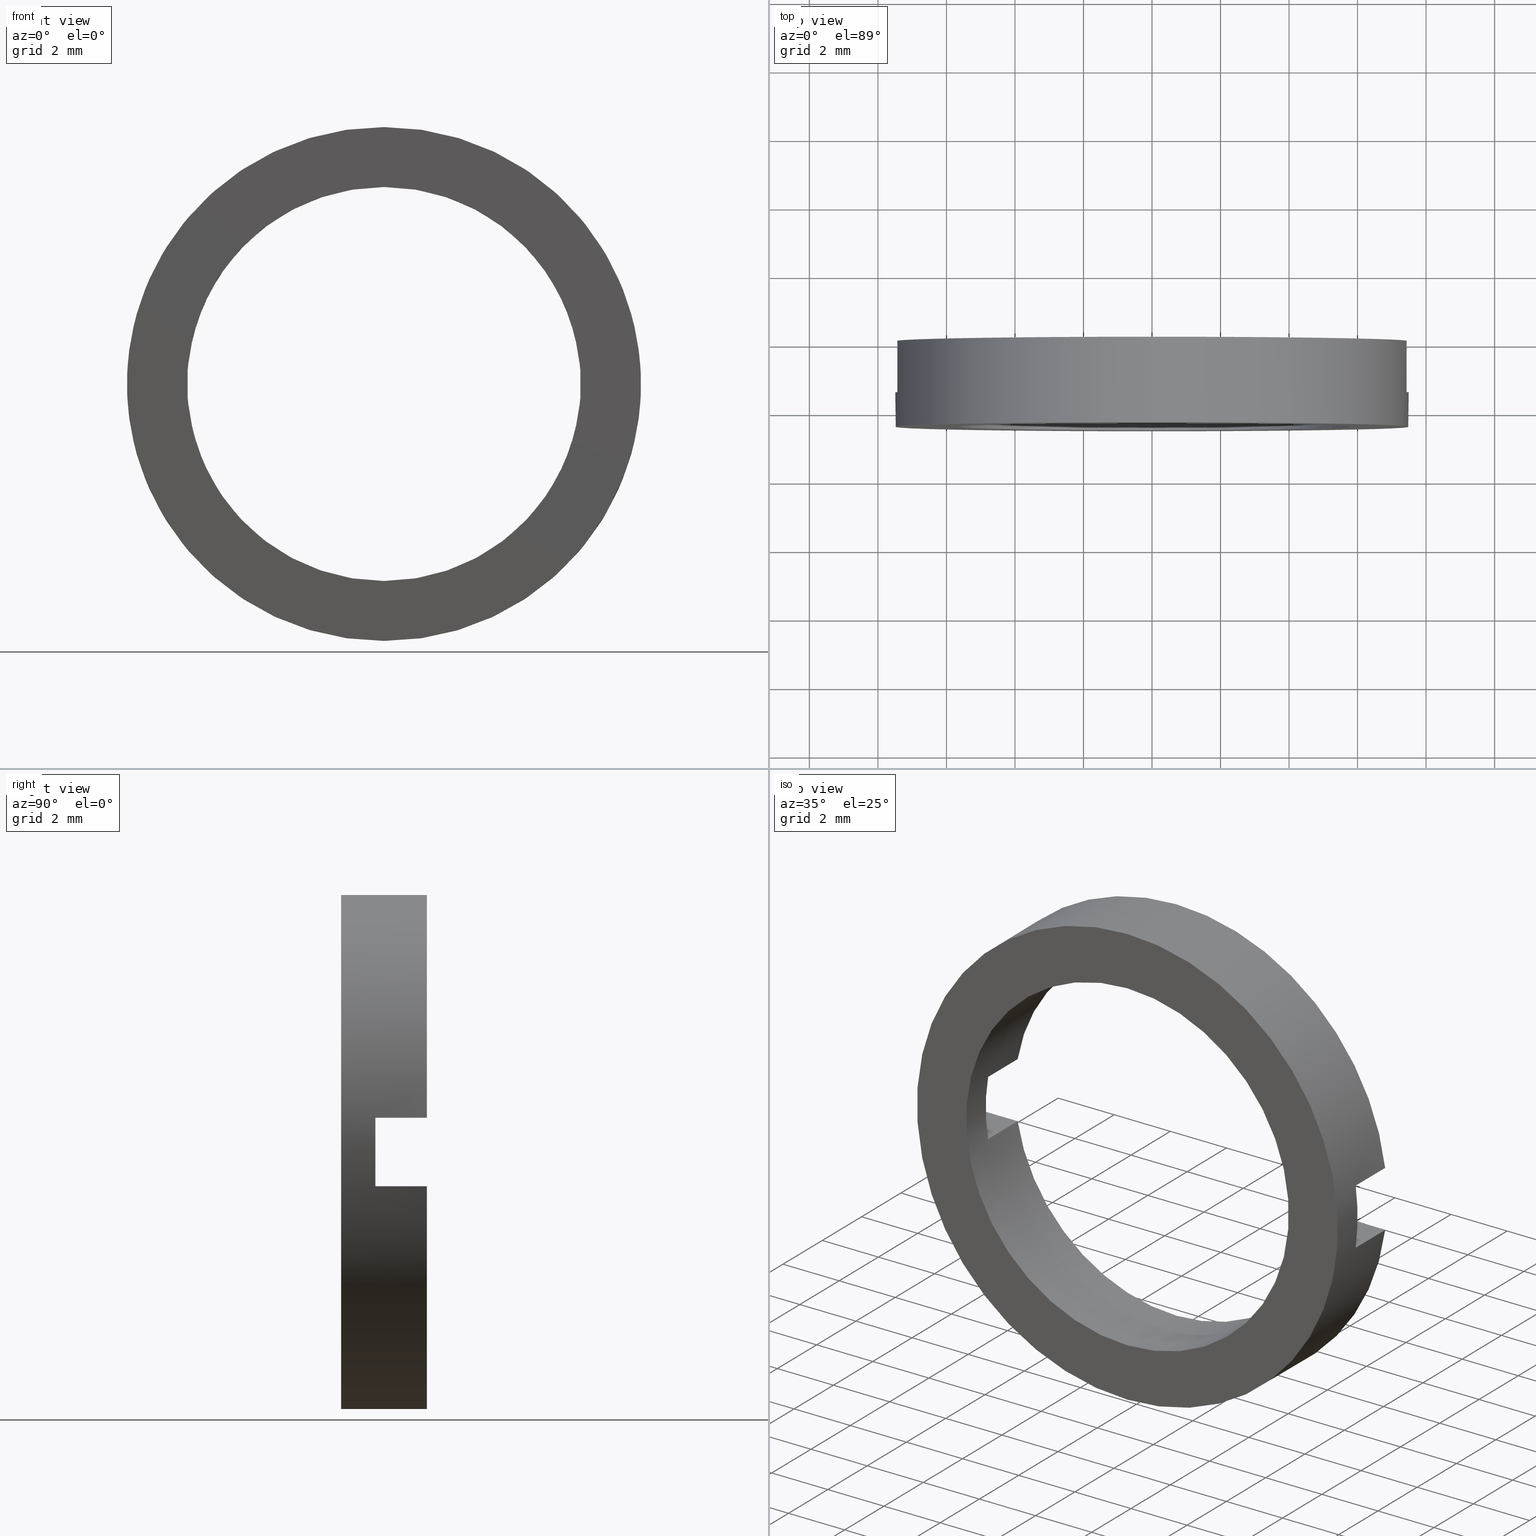
[diagram: canonical four-view strip — front | top / right | iso, engineering-drawing reading convention]
A machine part, canonical four-view strip (front | top / right | iso — engineering-drawing reading convention). The complete STEP part file that produces these views, byte-faithful:
ISO-10303-21;
HEADER;
FILE_DESCRIPTION (( 'STEP AP203' ),
    '1' );
FILE_NAME ('514014.STEP',
    '2019-09-25T08:49:46',
    ( '' ),
    ( '' ),
    'SwSTEP 2.0',
    'SolidWorks 2016',
    '' );
FILE_SCHEMA (( 'CONFIG_CONTROL_DESIGN' ));
ENDSEC;

DATA;
#1 = PERSON_AND_ORGANIZATION ( #571, #198 ) ;
#2 = VECTOR ( 'NONE', #539, 1000.000000000000000 ) ;
#3 = DIRECTION ( 'NONE',  ( -1.000000000000000000, -0.0000000000000000000, -0.0000000000000000000 ) ) ;
#4 = ORIENTED_EDGE ( 'NONE', *, *, #121, .F. ) ;
#5 = CARTESIAN_POINT ( 'NONE',  ( -5.662375826453069500, -1.964249787179434000, -0.9999999999999995600 ) ) ;
#6 = PERSON_AND_ORGANIZATION_ROLE ( 'creator' ) ;
#7 = CC_DESIGN_PERSON_AND_ORGANIZATION_ASSIGNMENT ( #166, #95, ( #570 ) ) ;
#8 = CC_DESIGN_PERSON_AND_ORGANIZATION_ASSIGNMENT ( #250, #553, ( #544 ) ) ;
#9 = APPROVAL_ROLE ( '' ) ;
#10 = CARTESIAN_POINT ( 'NONE',  ( 0.0000000000000000000, 0.0000000000000000000, 0.0000000000000000000 ) ) ;
#11 = APPLICATION_PROTOCOL_DEFINITION ( 'international standard', 'config_control_design', 1994, #148 ) ;
#12 = AXIS2_PLACEMENT_3D ( 'NONE', #80, #83, #586 ) ;
#13 = VECTOR ( 'NONE', #470, 1000.000000000000000 ) ;
#14 = ORIENTED_EDGE ( 'NONE', *, *, #70, .F. ) ;
#15 = CARTESIAN_POINT ( 'NONE',  ( 0.0000000000000000000, -1.964249787179434000, 0.0000000000000000000 ) ) ;
#16 = APPROVAL_ROLE ( '' ) ;
#17 = EDGE_CURVE ( 'NONE', #105, #84, #295, .T. ) ;
#18 = APPROVAL_DATE_TIME ( #63, #577 ) ;
#19 = CIRCLE ( 'NONE', #69, 5.750000000000008900 ) ;
#20 = FACE_OUTER_BOUND ( 'NONE', #497, .T. ) ;
#21 = ORIENTED_EDGE ( 'NONE', *, *, #106, .F. ) ;
#22 = EDGE_CURVE ( 'NONE', #574, #531, #246, .T. ) ;
#23 = PRODUCT_DEFINITION ( 'δ֪', '', #293, #492 ) ;
#24 = VECTOR ( 'NONE', #223, 1000.000000000000000 ) ;
#25 = EDGE_LOOP ( 'NONE', ( #393, #334, #380, #177 ) ) ;
#26 = ORIENTED_EDGE ( 'NONE', *, *, #396, .F. ) ;
#27 = SHAPE_DEFINITION_REPRESENTATION ( #394, #45 ) ;
#28 = CIRCLE ( 'NONE', #562, 7.500000000000007100 ) ;
#29 = ORIENTED_EDGE ( 'NONE', *, *, #122, .F. ) ;
#30 = DIRECTION ( 'NONE',  ( 0.0000000000000000000, -1.000000000000000000, 0.0000000000000000000 ) ) ;
#31 = CARTESIAN_POINT ( 'NONE',  ( 0.0000000000000000000, 56.26084262701361600, 5.750000000000008000 ) ) ;
#32 = PERSON_AND_ORGANIZATION ( #571, #198 ) ;
#33 = DIRECTION ( 'NONE',  ( 0.0000000000000000000, 0.0000000000000000000, 1.000000000000000000 ) ) ;
#34 = ORIENTED_EDGE ( 'NONE', *, *, #438, .F. ) ;
#35 = DIRECTION ( 'NONE',  ( -0.0000000000000000000, 1.000000000000000000, -0.0000000000000000000 ) ) ;
#36 = PLANE ( 'NONE',  #143 ) ;
#37 = AXIS2_PLACEMENT_3D ( 'NONE', #351, #90, #500 ) ;
#38 = CARTESIAN_POINT ( 'NONE',  ( 0.0000000000000000000, -4.464249787179428900, 7.500000000000007100 ) ) ;
#39 = PLANE ( 'NONE',  #12 ) ;
#40 = COORDINATED_UNIVERSAL_TIME_OFFSET ( 8, 0, .AHEAD. ) ;
#41 = FACE_OUTER_BOUND ( 'NONE', #363, .T. ) ;
#42 = ORIENTED_EDGE ( 'NONE', *, *, #134, .T. ) ;
#43 = ORIENTED_EDGE ( 'NONE', *, *, #77, .T. ) ;
#44 = CARTESIAN_POINT ( 'NONE',  ( 5.750000000000008900, -4.464249787179429800, 0.0000000000000000000 ) ) ;
#45 = ADVANCED_BREP_SHAPE_REPRESENTATION ( '514014', ( #128, #572 ), #132 ) ;
#46 = EDGE_CURVE ( 'NONE', #129, #226, #284, .T. ) ;
#47 = DATE_AND_TIME ( #189, #306 ) ;
#48 = DIRECTION ( 'NONE',  ( -0.0000000000000000000, 1.000000000000000000, -0.0000000000000000000 ) ) ;
#49 = APPROVAL_STATUS ( 'not_yet_approved' ) ;
#50 = AXIS2_PLACEMENT_3D ( 'NONE', #506, #222, #412 ) ;
#51 = VERTEX_POINT ( 'NONE', #55 ) ;
#52 = DIRECTION ( 'NONE',  ( 0.0000000000000000000, 0.0000000000000000000, 1.000000000000000000 ) ) ;
#53 = DIRECTION ( 'NONE',  ( -0.0000000000000000000, 1.000000000000000000, -0.0000000000000000000 ) ) ;
#54 = APPLICATION_CONTEXT ( 'configuration controlled 3d designs of mechanical parts and assemblies' ) ;
#55 = CARTESIAN_POINT ( 'NONE',  ( 7.433034373659247700, -1.964249787179430900, -1.000000000000000000 ) ) ;
#56 = MECHANICAL_CONTEXT ( 'NONE', #99, 'mechanical' ) ;
#57 = LOCAL_TIME ( 16, 49, 46.00000000000000000, #430 ) ;
#58 = CARTESIAN_POINT ( 'NONE',  ( -7.433034373659258300, -3.464249787179428400, 0.9999999999999995600 ) ) ;
#59 = VERTEX_POINT ( 'NONE', #5 ) ;
#60 = ORIENTED_EDGE ( 'NONE', *, *, #532, .F. ) ;
#61 = CARTESIAN_POINT ( 'NONE',  ( 0.0000000000000000000, -1.964249787179434000, 0.0000000000000000000 ) ) ;
#62 = AXIS2_PLACEMENT_3D ( 'NONE', #61, #330, #375 ) ;
#63 = DATE_AND_TIME ( #100, #549 ) ;
#64 = DIRECTION ( 'NONE',  ( 0.0000000000000000000, 1.000000000000000000, 0.0000000000000000000 ) ) ;
#65 = CIRCLE ( 'NONE', #321, 7.500000000000007100 ) ;
#66 = CC_DESIGN_DATE_AND_TIME_ASSIGNMENT ( #578, #234, ( #570 ) ) ;
#67 = LINE ( 'NONE', #464, #537 ) ;
#68 = COORDINATED_UNIVERSAL_TIME_OFFSET ( 8, 0, .AHEAD. ) ;
#69 = AXIS2_PLACEMENT_3D ( 'NONE', #82, #588, #175 ) ;
#70 = EDGE_CURVE ( 'NONE', #531, #59, #505, .T. ) ;
#71 = VERTEX_POINT ( 'NONE', #194 ) ;
#72 = ORIENTED_EDGE ( 'NONE', *, *, #46, .F. ) ;
#73 = CARTESIAN_POINT ( 'NONE',  ( 0.0000000000000000000, 56.26084262701361600, 0.0000000000000000000 ) ) ;
#74 = APPROVAL_DATE_TIME ( #557, #255 ) ;
#75 = LINE ( 'NONE', #264, #270 ) ;
#76 = PLANE ( 'NONE',  #227 ) ;
#77 = EDGE_CURVE ( 'NONE', #96, #192, #28, .T. ) ;
#78 = ORIENTED_EDGE ( 'NONE', *, *, #276, .F. ) ;
#79 = CARTESIAN_POINT ( 'NONE',  ( -7.433034373659259200, 56.26084262701361600, 1.000000000000000000 ) ) ;
#80 = CARTESIAN_POINT ( 'NONE',  ( 0.0000000000000000000, -3.464249787179431100, 0.0000000000000000000 ) ) ;
#81 = CALENDAR_DATE ( 2019, 25, 9 ) ;
#82 = CARTESIAN_POINT ( 'NONE',  ( 0.0000000000000000000, -4.464249787179428900, 0.0000000000000000000 ) ) ;
#83 = DIRECTION ( 'NONE',  ( 0.0000000000000000000, 1.000000000000000000, 0.0000000000000000000 ) ) ;
#84 = VERTEX_POINT ( 'NONE', #327 ) ;
#85 = CARTESIAN_POINT ( 'NONE',  ( 9.184850993605157800E-016, -1.964249787179434000, -7.500000000000007100 ) ) ;
#86 = ORIENTED_EDGE ( 'NONE', *, *, #515, .T. ) ;
#87 = DIRECTION ( 'NONE',  ( -0.0000000000000000000, 1.000000000000000000, -0.0000000000000000000 ) ) ;
#88 = AXIS2_PLACEMENT_3D ( 'NONE', #152, #427, #322 ) ;
#89 = EDGE_CURVE ( 'NONE', #59, #163, #466, .T. ) ;
#90 = DIRECTION ( 'NONE',  ( -0.0000000000000000000, -1.000000000000000000, -0.0000000000000000000 ) ) ;
#91 = LOCAL_TIME ( 16, 49, 46.00000000000000000, #340 ) ;
#92 = LOCAL_TIME ( 16, 49, 46.00000000000000000, #416 ) ;
#93 = VECTOR ( 'NONE', #160, 1000.000000000000000 ) ;
#94 = CARTESIAN_POINT ( 'NONE',  ( -26.85254027261461800, -3.464249787179431100, 1.000000000000000000 ) ) ;
#95 = PERSON_AND_ORGANIZATION_ROLE ( 'classification_officer' ) ;
#96 = VERTEX_POINT ( 'NONE', #239 ) ;
#97 = CC_DESIGN_PERSON_AND_ORGANIZATION_ASSIGNMENT ( #341, #461, ( #116 ) ) ;
#98 = DIRECTION ( 'NONE',  ( 1.000000000000000000, 0.0000000000000000000, 0.0000000000000000000 ) ) ;
#99 = APPLICATION_CONTEXT ( 'configuration controlled 3d designs of mechanical parts and assemblies' ) ;
#100 = CALENDAR_DATE ( 2019, 25, 9 ) ;
#101 = PLANE ( 'NONE',  #179 ) ;
#102 =( NAMED_UNIT ( * ) PLANE_ANGLE_UNIT ( ) SI_UNIT ( $, .RADIAN. ) );
#103 = ORIENTED_EDGE ( 'NONE', *, *, #114, .T. ) ;
#104 = CARTESIAN_POINT ( 'NONE',  ( 7.433034373659259200, 56.26084262701361600, 1.000000000000000000 ) ) ;
#105 = VERTEX_POINT ( 'NONE', #58 ) ;
#106 = EDGE_CURVE ( 'NONE', #84, #210, #379, .T. ) ;
#107 = CARTESIAN_POINT ( 'NONE',  ( -26.85254027261461800, -1.964249787179430900, -1.000000000000000000 ) ) ;
#108 = LOCAL_TIME ( 16, 49, 46.00000000000000000, #40 ) ;
#109 = PERSON_AND_ORGANIZATION ( #571, #198 ) ;
#110 = CARTESIAN_POINT ( 'NONE',  ( 0.0000000000000000000, 56.26084262701361600, 0.0000000000000000000 ) ) ;
#111 = CIRCLE ( 'NONE', #469, 5.750000000000008900 ) ;
#112 = ORIENTED_EDGE ( 'NONE', *, *, #70, .T. ) ;
#113 = DIRECTION ( 'NONE',  ( 0.0000000000000000000, 0.0000000000000000000, 1.000000000000000000 ) ) ;
#114 = EDGE_CURVE ( 'NONE', #226, #444, #530, .T. ) ;
#115 = CC_DESIGN_PERSON_AND_ORGANIZATION_ASSIGNMENT ( #32, #417, ( #23 ) ) ;
#116 = PRODUCT ( '514014', '514014', '', ( #56 ) ) ;
#117 = FACE_OUTER_BOUND ( 'NONE', #214, .T. ) ;
#118 = ORIENTED_EDGE ( 'NONE', *, *, #347, .T. ) ;
#119 = COORDINATED_UNIVERSAL_TIME_OFFSET ( 8, 0, .AHEAD. ) ;
#120 = FACE_OUTER_BOUND ( 'NONE', #522, .T. ) ;
#121 = EDGE_CURVE ( 'NONE', #272, #129, #281, .T. ) ;
#122 = EDGE_CURVE ( 'NONE', #226, #71, #67, .T. ) ;
#123 = LINE ( 'NONE', #79, #2 ) ;
#124 = ORIENTED_EDGE ( 'NONE', *, *, #339, .T. ) ;
#125 = CARTESIAN_POINT ( 'NONE',  ( 7.433034373659258300, -3.464249787179428400, -0.9999999999999995600 ) ) ;
#126 = DIRECTION ( 'NONE',  ( 0.0000000000000000000, -0.0000000000000000000, -1.000000000000000000 ) ) ;
#127 = LINE ( 'NONE', #589, #440 ) ;
#128 = MANIFOLD_SOLID_BREP ( '�г�-����1', #352 ) ;
#129 = VERTEX_POINT ( 'NONE', #381 ) ;
#130 = DIRECTION ( 'NONE',  ( 0.0000000000000000000, 0.0000000000000000000, 1.000000000000000000 ) ) ;
#131 = ORIENTED_EDGE ( 'NONE', *, *, #387, .F. ) ;
#132 =( GEOMETRIC_REPRESENTATION_CONTEXT ( 3 ) GLOBAL_UNCERTAINTY_ASSIGNED_CONTEXT ( ( #279 ) ) GLOBAL_UNIT_ASSIGNED_CONTEXT ( ( #142, #102, #319 ) ) REPRESENTATION_CONTEXT ( 'NONE', 'WORKASPACE' ) );
#133 = CARTESIAN_POINT ( 'NONE',  ( 0.0000000000000000000, -1.964249787179434000, 0.0000000000000000000 ) ) ;
#134 = EDGE_CURVE ( 'NONE', #51, #325, #263, .T. ) ;
#135 = DATE_AND_TIME ( #526, #564 ) ;
#136 = LINE ( 'NONE', #31, #391 ) ;
#137 = PRODUCT_RELATED_PRODUCT_CATEGORY ( 'detail', '', ( #116 ) ) ;
#138 = FACE_OUTER_BOUND ( 'NONE', #479, .T. ) ;
#139 = VERTEX_POINT ( 'NONE', #567 ) ;
#140 = APPROVAL ( #49, 'δָ��' ) ;
#141 = PERSON_AND_ORGANIZATION_ROLE ( 'design_supplier' ) ;
#142 =( LENGTH_UNIT ( ) NAMED_UNIT ( * ) SI_UNIT ( .MILLI., .METRE. ) );
#143 = AXIS2_PLACEMENT_3D ( 'NONE', #44, #403, #358 ) ;
#144 = FACE_OUTER_BOUND ( 'NONE', #482, .T. ) ;
#145 = PERSON_AND_ORGANIZATION_ROLE ( 'design_supplier' ) ;
#146 = ORIENTED_EDGE ( 'NONE', *, *, #154, .T. ) ;
#147 = EDGE_LOOP ( 'NONE', ( #560, #233, #124, #576, #170, #191, #267, #585 ) ) ;
#148 = APPLICATION_CONTEXT ( 'configuration controlled 3d designs of mechanical parts and assemblies' ) ;
#149 = CALENDAR_DATE ( 2019, 25, 9 ) ;
#150 = CIRCLE ( 'NONE', #50, 7.500000000000007100 ) ;
#151 = ORIENTED_EDGE ( 'NONE', *, *, #221, .F. ) ;
#152 = CARTESIAN_POINT ( 'NONE',  ( 0.0000000000000000000, -3.464249787179428400, 0.0000000000000000000 ) ) ;
#153 = VERTEX_POINT ( 'NONE', #197 ) ;
#154 = EDGE_CURVE ( 'NONE', #409, #444, #336, .T. ) ;
#155 = ADVANCED_FACE ( 'NONE', ( #117 ), #301, .T. ) ;
#156 = CALENDAR_DATE ( 2019, 25, 9 ) ;
#157 = CC_DESIGN_PERSON_AND_ORGANIZATION_ASSIGNMENT ( #238, #282, ( #293 ) ) ;
#158 = ORIENTED_EDGE ( 'NONE', *, *, #525, .T. ) ;
#159 = CC_DESIGN_PERSON_AND_ORGANIZATION_ASSIGNMENT ( #207, #230, ( #432 ) ) ;
#160 = DIRECTION ( 'NONE',  ( -1.000000000000000000, -0.0000000000000000000, -0.0000000000000000000 ) ) ;
#161 = AXIS2_PLACEMENT_3D ( 'NONE', #533, #30, #488 ) ;
#162 = DATE_AND_TIME ( #81, #91 ) ;
#163 = VERTEX_POINT ( 'NONE', #524 ) ;
#164 = ORIENTED_EDGE ( 'NONE', *, *, #205, .F. ) ;
#165 = PLANE ( 'NONE',  #161 ) ;
#166 = PERSON_AND_ORGANIZATION ( #571, #198 ) ;
#167 = VECTOR ( 'NONE', #410, 1000.000000000000000 ) ;
#168 = DIRECTION ( 'NONE',  ( -0.0000000000000000000, 1.000000000000000000, -0.0000000000000000000 ) ) ;
#169 = AXIS2_PLACEMENT_3D ( 'NONE', #110, #190, #513 ) ;
#170 = ORIENTED_EDGE ( 'NONE', *, *, #122, .T. ) ;
#171 = CARTESIAN_POINT ( 'NONE',  ( 5.662375826453070400, 56.26084262701361600, -1.000000000000000000 ) ) ;
#172 = DIRECTION ( 'NONE',  ( -1.000000000000000000, 0.0000000000000000000, -0.0000000000000000000 ) ) ;
#173 = DIRECTION ( 'NONE',  ( 0.0000000000000000000, 0.0000000000000000000, 1.000000000000000000 ) ) ;
#174 = APPROVAL_PERSON_ORGANIZATION ( #398, #356, #367 ) ;
#175 = DIRECTION ( 'NONE',  ( 0.0000000000000000000, 0.0000000000000000000, 1.000000000000000000 ) ) ;
#176 = ORIENTED_EDGE ( 'NONE', *, *, #275, .F. ) ;
#177 = ORIENTED_EDGE ( 'NONE', *, *, #205, .T. ) ;
#178 = CARTESIAN_POINT ( 'NONE',  ( -5.662375826453070400, 56.26084262701361600, -1.000000000000000000 ) ) ;
#179 = AXIS2_PLACEMENT_3D ( 'NONE', #232, #558, #328 ) ;
#180 = ADVANCED_FACE ( 'NONE', ( #138 ), #101, .F. ) ;
#181 = PERSON_AND_ORGANIZATION ( #571, #198 ) ;
#182 = FACE_OUTER_BOUND ( 'NONE', #252, .T. ) ;
#183 = APPROVAL_ROLE ( '' ) ;
#184 = ORIENTED_EDGE ( 'NONE', *, *, #339, .F. ) ;
#185 = APPLICATION_PROTOCOL_DEFINITION ( 'international standard', 'config_control_design', 1994, #99 ) ;
#186 = DIRECTION ( 'NONE',  ( 1.000000000000000000, 0.0000000000000000000, 0.0000000000000000000 ) ) ;
#187 = DATE_TIME_ROLE ( 'creation_date' ) ;
#188 = APPROVAL ( #559, 'δָ��' ) ;
#189 = CALENDAR_DATE ( 2019, 25, 9 ) ;
#190 = DIRECTION ( 'NONE',  ( -0.0000000000000000000, 1.000000000000000000, -0.0000000000000000000 ) ) ;
#191 = ORIENTED_EDGE ( 'NONE', *, *, #445, .F. ) ;
#192 = VERTEX_POINT ( 'NONE', #516 ) ;
#193 = DIRECTION ( 'NONE',  ( 0.0000000000000000000, 0.0000000000000000000, 1.000000000000000000 ) ) ;
#194 = CARTESIAN_POINT ( 'NONE',  ( 5.662375826453069500, -3.464249787179428400, 0.9999999999999995600 ) ) ;
#195 = CC_DESIGN_DATE_AND_TIME_ASSIGNMENT ( #439, #187, ( #244 ) ) ;
#196 = PERSON_AND_ORGANIZATION ( #571, #198 ) ;
#197 = CARTESIAN_POINT ( 'NONE',  ( 9.184850993605157800E-016, -4.464249787179428900, -7.500000000000007100 ) ) ;
#198 = ORGANIZATION ( 'δָ��', 'δָ��', '' ) ;
#199 = VERTEX_POINT ( 'NONE', #468 ) ;
#200 = EDGE_CURVE ( 'NONE', #409, #325, #208, .T. ) ;
#201 = LOCAL_TIME ( 16, 49, 46.00000000000000000, #359 ) ;
#202 = VECTOR ( 'NONE', #53, 1000.000000000000000 ) ;
#203 = ORIENTED_EDGE ( 'NONE', *, *, #275, .T. ) ;
#204 = DIRECTION ( 'NONE',  ( -0.0000000000000000000, 1.000000000000000000, -0.0000000000000000000 ) ) ;
#205 = EDGE_CURVE ( 'NONE', #210, #199, #333, .T. ) ;
#206 = APPROVAL_PERSON_ORGANIZATION ( #196, #255, #183 ) ;
#207 = PERSON_AND_ORGANIZATION ( #571, #198 ) ;
#208 = CIRCLE ( 'NONE', #420, 7.500000000000007100 ) ;
#209 = CARTESIAN_POINT ( 'NONE',  ( 0.0000000000000000000, -4.464249787179428900, 5.750000000000008900 ) ) ;
#210 = VERTEX_POINT ( 'NONE', #283 ) ;
#211 = DIRECTION ( 'NONE',  ( -0.0000000000000000000, 1.000000000000000000, -0.0000000000000000000 ) ) ;
#212 = DIRECTION ( 'NONE',  ( -0.0000000000000000000, 1.000000000000000000, -0.0000000000000000000 ) ) ;
#213 = CARTESIAN_POINT ( 'NONE',  ( 7.041719095097290700E-016, -1.964249787179434000, -5.750000000000007100 ) ) ;
#214 = EDGE_LOOP ( 'NONE', ( #158, #217, #490, #42, #370, #146, #176, #528 ) ) ;
#215 = DATE_AND_TIME ( #149, #278 ) ;
#216 = DIRECTION ( 'NONE',  ( 0.0000000000000000000, 0.0000000000000000000, 1.000000000000000000 ) ) ;
#217 = ORIENTED_EDGE ( 'NONE', *, *, #429, .T. ) ;
#218 = ORIENTED_EDGE ( 'NONE', *, *, #396, .T. ) ;
#219 = DIRECTION ( 'NONE',  ( -0.0000000000000000000, 1.000000000000000000, -0.0000000000000000000 ) ) ;
#220 = DIRECTION ( 'NONE',  ( 1.000000000000000000, 0.0000000000000000000, 0.0000000000000000000 ) ) ;
#221 = EDGE_CURVE ( 'NONE', #51, #139, #568, .T. ) ;
#222 = DIRECTION ( 'NONE',  ( -0.0000000000000000000, 1.000000000000000000, -0.0000000000000000000 ) ) ;
#223 = DIRECTION ( 'NONE',  ( 0.0000000000000000000, -1.000000000000000000, 0.0000000000000000000 ) ) ;
#224 = CALENDAR_DATE ( 2019, 25, 9 ) ;
#225 = VECTOR ( 'NONE', #307, 1000.000000000000000 ) ;
#226 = VERTEX_POINT ( 'NONE', #411 ) ;
#227 = AXIS2_PLACEMENT_3D ( 'NONE', #257, #583, #126 ) ;
#228 = AXIS2_PLACEMENT_3D ( 'NONE', #456, #457, #548 ) ;
#229 = FACE_OUTER_BOUND ( 'NONE', #25, .T. ) ;
#230 = PERSON_AND_ORGANIZATION_ROLE ( 'design_owner' ) ;
#231 = ORIENTED_EDGE ( 'NONE', *, *, #89, .T. ) ;
#232 = CARTESIAN_POINT ( 'NONE',  ( -26.85254027261461800, -3.464249787179431100, -1.000000000000000000 ) ) ;
#233 = ORIENTED_EDGE ( 'NONE', *, *, #364, .F. ) ;
#234 = DATE_TIME_ROLE ( 'classification_date' ) ;
#235 = DIRECTION ( 'NONE',  ( 0.0000000000000000000, 0.0000000000000000000, 1.000000000000000000 ) ) ;
#236 = ADVANCED_FACE ( 'NONE', ( #459 ), #76, .F. ) ;
#237 = DIRECTION ( 'NONE',  ( -0.0000000000000000000, 1.000000000000000000, -0.0000000000000000000 ) ) ;
#238 = PERSON_AND_ORGANIZATION ( #571, #198 ) ;
#239 = CARTESIAN_POINT ( 'NONE',  ( -7.433034373659268100, -1.964249787179430900, 1.000000000000000000 ) ) ;
#240 = ADVANCED_FACE ( 'NONE', ( #20 ), #485, .F. ) ;
#241 = CIRCLE ( 'NONE', #298, 5.750000000000007100 ) ;
#242 = EDGE_CURVE ( 'NONE', #51, #386, #360, .T. ) ;
#243 = ORIENTED_EDGE ( 'NONE', *, *, #154, .F. ) ;
#244 = PRODUCT_DEFINITION ( 'δ֪', '', #475, #256 ) ;
#245 = LINE ( 'NONE', #171, #251 ) ;
#246 = LINE ( 'NONE', #318, #545 ) ;
#247 = ORIENTED_EDGE ( 'NONE', *, *, #22, .T. ) ;
#248 = EDGE_CURVE ( 'NONE', #96, #105, #123, .T. ) ;
#249 = EDGE_CURVE ( 'NONE', #139, #531, #241, .T. ) ;
#250 = PERSON_AND_ORGANIZATION ( #571, #198 ) ;
#251 = VECTOR ( 'NONE', #446, 1000.000000000000000 ) ;
#252 = EDGE_LOOP ( 'NONE', ( #392, #218, #437, #14, #521, #151 ) ) ;
#253 = EDGE_LOOP ( 'NONE', ( #310, #317, #554, #561 ) ) ;
#254 = CARTESIAN_POINT ( 'NONE',  ( 0.0000000000000000000, -3.464249787179428400, 0.0000000000000000000 ) ) ;
#255 = APPROVAL ( #419, 'δָ��' ) ;
#256 = DESIGN_CONTEXT ( 'detailed design', #54, 'design' ) ;
#257 = CARTESIAN_POINT ( 'NONE',  ( 5.750000000000007100, -1.964249787179430900, 0.0000000000000000000 ) ) ;
#258 = CARTESIAN_POINT ( 'NONE',  ( -26.85254027261461800, -3.464249787179431100, -1.000000000000000000 ) ) ;
#259 = AXIS2_PLACEMENT_3D ( 'NONE', #495, #168, #486 ) ;
#260 = CYLINDRICAL_SURFACE ( 'NONE', #450, 5.750000000000008000 ) ;
#261 = CC_DESIGN_DATE_AND_TIME_ASSIGNMENT ( #314, #365, ( #23 ) ) ;
#262 = PLANE ( 'NONE',  #480 ) ;
#263 = LINE ( 'NONE', #520, #418 ) ;
#264 = CARTESIAN_POINT ( 'NONE',  ( -26.85254027261461800, -1.964249787179430900, 1.000000000000000000 ) ) ;
#265 = DIRECTION ( 'NONE',  ( 0.0000000000000000000, 0.0000000000000000000, 1.000000000000000000 ) ) ;
#266 = PLANE ( 'NONE',  #348 ) ;
#267 = ORIENTED_EDGE ( 'NONE', *, *, #489, .T. ) ;
#268 = PLANE ( 'NONE',  #408 ) ;
#269 = CALENDAR_DATE ( 2019, 25, 9 ) ;
#270 = VECTOR ( 'NONE', #313, 1000.000000000000000 ) ;
#271 = DIRECTION ( 'NONE',  ( -0.0000000000000000000, 1.000000000000000000, -0.0000000000000000000 ) ) ;
#272 = VERTEX_POINT ( 'NONE', #402 ) ;
#273 = ORIENTED_EDGE ( 'NONE', *, *, #551, .T. ) ;
#274 = CARTESIAN_POINT ( 'NONE',  ( 7.433034373659247700, -1.964249787179430900, 1.000000000000000000 ) ) ;
#275 = EDGE_CURVE ( 'NONE', #192, #444, #472, .T. ) ;
#276 = EDGE_CURVE ( 'NONE', #574, #291, #111, .T. ) ;
#277 = APPLICATION_PROTOCOL_DEFINITION ( 'international standard', 'config_control_design', 1994, #371 ) ;
#278 = LOCAL_TIME ( 16, 49, 46.00000000000000000, #449 ) ;
#279 = UNCERTAINTY_MEASURE_WITH_UNIT (LENGTH_MEASURE( 1.000000000000000100E-005 ), #142, 'distance_accuracy_value', 'NONE');
#280 = DIRECTION ( 'NONE',  ( 0.0000000000000000000, 0.0000000000000000000, 1.000000000000000000 ) ) ;
#281 = CIRCLE ( 'NONE', #62, 5.750000000000007100 ) ;
#282 = PERSON_AND_ORGANIZATION_ROLE ( 'creator' ) ;
#283 = CARTESIAN_POINT ( 'NONE',  ( -5.662375826453069500, -3.464249787179428400, -0.9999999999999995600 ) ) ;
#284 = CIRCLE ( 'NONE', #376, 5.750000000000007100 ) ;
#285 = ORIENTED_EDGE ( 'NONE', *, *, #421, .F. ) ;
#286 = ADVANCED_FACE ( 'NONE', ( #342 ), #260, .F. ) ;
#287 = CARTESIAN_POINT ( 'NONE',  ( -26.85254027261461800, -1.964249787179430900, 1.000000000000000000 ) ) ;
#288 = CALENDAR_DATE ( 2019, 25, 9 ) ;
#289 = VECTOR ( 'NONE', #87, 1000.000000000000000 ) ;
#290 = AXIS2_PLACEMENT_3D ( 'NONE', #441, #211, #216 ) ;
#291 = VERTEX_POINT ( 'NONE', #209 ) ;
#292 = AXIS2_PLACEMENT_3D ( 'NONE', #133, #361, #130 ) ;
#293 = PRODUCT_DEFINITION_FORMATION_WITH_SPECIFIED_SOURCE ( '�κ�', '', #432, .NOT_KNOWN. ) ;
#294 = ADVANCED_FACE ( 'NONE', ( #41 ), #262, .F. ) ;
#295 = LINE ( 'NONE', #94, #407 ) ;
#296 = VERTEX_POINT ( 'NONE', #38 ) ;
#297 = DIRECTION ( 'NONE',  ( 0.0000000000000000000, 0.0000000000000000000, 1.000000000000000000 ) ) ;
#298 = AXIS2_PLACEMENT_3D ( 'NONE', #447, #204, #33 ) ;
#299 = PERSON_AND_ORGANIZATION ( #571, #198 ) ;
#300 = VECTOR ( 'NONE', #219, 1000.000000000000000 ) ;
#301 = CYLINDRICAL_SURFACE ( 'NONE', #169, 7.500000000000007100 ) ;
#302 = PRODUCT_DEFINITION_SHAPE ( 'NONE', 'NONE',  #23 ) ;
#303 = CC_DESIGN_PERSON_AND_ORGANIZATION_ASSIGNMENT ( #181, #141, ( #293 ) ) ;
#304 = CARTESIAN_POINT ( 'NONE',  ( 0.0000000000000000000, -4.464249787179428900, 0.0000000000000000000 ) ) ;
#305 = CARTESIAN_POINT ( 'NONE',  ( -5.662375826453070400, 56.26084262701361600, 1.000000000000000000 ) ) ;
#306 = LOCAL_TIME ( 16, 49, 46.00000000000000000, #458 ) ;
#307 = DIRECTION ( 'NONE',  ( 1.000000000000000000, 0.0000000000000000000, 0.0000000000000000000 ) ) ;
#308 = ORIENTED_EDGE ( 'NONE', *, *, #551, .F. ) ;
#309 = CARTESIAN_POINT ( 'NONE',  ( 5.662375826453069500, -3.464249787179428400, -0.9999999999999995600 ) ) ;
#310 = ORIENTED_EDGE ( 'NONE', *, *, #421, .T. ) ;
#311 = AXIS2_PLACEMENT_3D ( 'NONE', #400, #212, #538 ) ;
#312 = EDGE_CURVE ( 'NONE', #199, #105, #384, .T. ) ;
#313 = DIRECTION ( 'NONE',  ( 1.000000000000000000, 0.0000000000000000000, 0.0000000000000000000 ) ) ;
#314 = DATE_AND_TIME ( #435, #108 ) ;
#315 = APPROVAL_DATE_TIME ( #566, #188 ) ;
#316 = APPROVAL_STATUS ( 'not_yet_approved' ) ;
#317 = ORIENTED_EDGE ( 'NONE', *, *, #515, .F. ) ;
#318 = CARTESIAN_POINT ( 'NONE',  ( 7.041719095097290700E-016, 56.26084262701361600, -5.750000000000008000 ) ) ;
#319 =( NAMED_UNIT ( * ) SI_UNIT ( $, .STERADIAN. ) SOLID_ANGLE_UNIT ( ) );
#320 = APPROVAL_ROLE ( '' ) ;
#321 = AXIS2_PLACEMENT_3D ( 'NONE', #453, #503, #173 ) ;
#322 = DIRECTION ( 'NONE',  ( 0.0000000000000000000, 0.0000000000000000000, 1.000000000000000000 ) ) ;
#323 = DATE_TIME_ROLE ( 'classification_date' ) ;
#324 = APPROVAL_PERSON_ORGANIZATION ( #1, #547, #16 ) ;
#325 = VERTEX_POINT ( 'NONE', #125 ) ;
#326 = EDGE_LOOP ( 'NONE', ( #354, #569 ) ) ;
#327 = CARTESIAN_POINT ( 'NONE',  ( -5.662375826453069500, -3.464249787179428400, 0.9999999999999995600 ) ) ;
#328 = DIRECTION ( 'NONE',  ( -1.000000000000000000, 0.0000000000000000000, -0.0000000000000000000 ) ) ;
#329 = PERSON_AND_ORGANIZATION ( #571, #198 ) ;
#330 = DIRECTION ( 'NONE',  ( -0.0000000000000000000, 1.000000000000000000, -0.0000000000000000000 ) ) ;
#331 = LINE ( 'NONE', #258, #431 ) ;
#332 = ADVANCED_FACE ( 'NONE', ( #182 ), #165, .F. ) ;
#333 = LINE ( 'NONE', #369, #93 ) ;
#334 = ORIENTED_EDGE ( 'NONE', *, *, #17, .T. ) ;
#335 = CARTESIAN_POINT ( 'NONE',  ( 0.0000000000000000000, -3.464249787179428400, 0.0000000000000000000 ) ) ;
#336 = LINE ( 'NONE', #104, #202 ) ;
#337 = ORIENTED_EDGE ( 'NONE', *, *, #525, .F. ) ;
#338 = AXIS2_PLACEMENT_3D ( 'NONE', #502, #451, #172 ) ;
#339 = EDGE_CURVE ( 'NONE', #291, #129, #136, .T. ) ;
#340 = COORDINATED_UNIVERSAL_TIME_OFFSET ( 8, 0, .AHEAD. ) ;
#341 = PERSON_AND_ORGANIZATION ( #571, #198 ) ;
#342 = FACE_OUTER_BOUND ( 'NONE', #147, .T. ) ;
#343 = DIRECTION ( 'NONE',  ( 0.0000000000000000000, 0.0000000000000000000, 1.000000000000000000 ) ) ;
#344 = EDGE_LOOP ( 'NONE', ( #452, #118, #474, #368 ) ) ;
#345 = CC_DESIGN_APPROVAL ( #140, ( #244 ) ) ;
#346 = DIRECTION ( 'NONE',  ( 1.000000000000000000, 0.0000000000000000000, 0.0000000000000000000 ) ) ;
#347 = EDGE_CURVE ( 'NONE', #325, #581, #331, .T. ) ;
#348 = AXIS2_PLACEMENT_3D ( 'NONE', #501, #355, #543 ) ;
#349 = LINE ( 'NONE', #305, #289 ) ;
#350 = CARTESIAN_POINT ( 'NONE',  ( -26.85254027261461800, -3.464249787179431100, 1.000000000000000000 ) ) ;
#351 = CARTESIAN_POINT ( 'NONE',  ( 0.0000000000000000000, -3.464249787179428400, 0.0000000000000000000 ) ) ;
#352 = CLOSED_SHELL ( 'NONE', ( #240, #155, #236, #463, #332, #286, #388, #565, #362, #294, #383, #180, #471 ) ) ;
#353 = CARTESIAN_POINT ( 'NONE',  ( -26.85254027261461800, -3.464249787179431100, 1.000000000000000000 ) ) ;
#354 = ORIENTED_EDGE ( 'NONE', *, *, #364, .T. ) ;
#355 = DIRECTION ( 'NONE',  ( 0.0000000000000000000, 1.000000000000000000, 0.0000000000000000000 ) ) ;
#356 = APPROVAL ( #316, 'δָ��' ) ;
#357 = DIRECTION ( 'NONE',  ( -0.0000000000000000000, 0.0000000000000000000, 1.000000000000000000 ) ) ;
#358 = DIRECTION ( 'NONE',  ( 0.0000000000000000000, 0.0000000000000000000, 1.000000000000000000 ) ) ;
#359 = COORDINATED_UNIVERSAL_TIME_OFFSET ( 8, 0, .AHEAD. ) ;
#360 = CIRCLE ( 'NONE', #290, 7.500000000000007100 ) ;
#361 = DIRECTION ( 'NONE',  ( -0.0000000000000000000, 1.000000000000000000, -0.0000000000000000000 ) ) ;
#362 = ADVANCED_FACE ( 'NONE', ( #527 ), #542, .F. ) ;
#363 = EDGE_LOOP ( 'NONE', ( #131, #29, #103, #243 ) ) ;
#364 = EDGE_CURVE ( 'NONE', #291, #574, #19, .T. ) ;
#365 = DATE_TIME_ROLE ( 'creation_date' ) ;
#366 = LINE ( 'NONE', #178, #24 ) ;
#367 = APPROVAL_ROLE ( '' ) ;
#368 = ORIENTED_EDGE ( 'NONE', *, *, #387, .T. ) ;
#369 = CARTESIAN_POINT ( 'NONE',  ( -26.85254027261461800, -3.464249787179431100, -1.000000000000000000 ) ) ;
#370 = ORIENTED_EDGE ( 'NONE', *, *, #200, .F. ) ;
#371 = APPLICATION_CONTEXT ( 'configuration controlled 3d designs of mechanical parts and assemblies' ) ;
#372 = ORIENTED_EDGE ( 'NONE', *, *, #429, .F. ) ;
#373 = DIRECTION ( 'NONE',  ( 0.0000000000000000000, -1.000000000000000000, 0.0000000000000000000 ) ) ;
#374 = APPLICATION_PROTOCOL_DEFINITION ( 'international standard', 'config_control_design', 1994, #54 ) ;
#375 = DIRECTION ( 'NONE',  ( 0.0000000000000000000, 0.0000000000000000000, 1.000000000000000000 ) ) ;
#376 = AXIS2_PLACEMENT_3D ( 'NONE', #473, #428, #193 ) ;
#377 = APPROVAL_DATE_TIME ( #162, #356 ) ;
#378 = DIRECTION ( 'NONE',  ( -0.0000000000000000000, 1.000000000000000000, -0.0000000000000000000 ) ) ;
#379 = CIRCLE ( 'NONE', #88, 5.750000000000008000 ) ;
#380 = ORIENTED_EDGE ( 'NONE', *, *, #106, .T. ) ;
#381 = CARTESIAN_POINT ( 'NONE',  ( 0.0000000000000000000, -1.964249787179434000, 5.750000000000007100 ) ) ;
#382 = CC_DESIGN_PERSON_AND_ORGANIZATION_ASSIGNMENT ( #529, #6, ( #244 ) ) ;
#383 = ADVANCED_FACE ( 'NONE', ( #504 ), #268, .F. ) ;
#384 = CIRCLE ( 'NONE', #575, 7.500000000000007100 ) ;
#385 = AXIS2_PLACEMENT_3D ( 'NONE', #10, #52, #98 ) ;
#386 = VERTEX_POINT ( 'NONE', #85 ) ;
#387 = EDGE_CURVE ( 'NONE', #71, #409, #399, .T. ) ;
#388 = ADVANCED_FACE ( 'NONE', ( #120, #484 ), #36, .F. ) ;
#389 = PRODUCT_RELATED_PRODUCT_CATEGORY ( 'detail', '', ( #432 ) ) ;
#390 = COORDINATED_UNIVERSAL_TIME_OFFSET ( 8, 0, .AHEAD. ) ;
#391 = VECTOR ( 'NONE', #397, 1000.000000000000000 ) ;
#392 = ORIENTED_EDGE ( 'NONE', *, *, #242, .T. ) ;
#393 = ORIENTED_EDGE ( 'NONE', *, *, #312, .T. ) ;
#394 = PRODUCT_DEFINITION_SHAPE ( 'NONE', 'NONE',  #244 ) ;
#395 = DIRECTION ( 'NONE',  ( -0.0000000000000000000, 0.0000000000000000000, 1.000000000000000000 ) ) ;
#396 = EDGE_CURVE ( 'NONE', #386, #163, #477, .T. ) ;
#397 = DIRECTION ( 'NONE',  ( -0.0000000000000000000, 1.000000000000000000, -0.0000000000000000000 ) ) ;
#398 = PERSON_AND_ORGANIZATION ( #571, #198 ) ;
#399 = LINE ( 'NONE', #353, #225 ) ;
#400 = CARTESIAN_POINT ( 'NONE',  ( 0.0000000000000000000, -1.964249787179434000, 0.0000000000000000000 ) ) ;
#401 = ORIENTED_EDGE ( 'NONE', *, *, #248, .T. ) ;
#402 = CARTESIAN_POINT ( 'NONE',  ( -5.662375826453069500, -1.964249787179434000, 0.9999999999999995600 ) ) ;
#403 = DIRECTION ( 'NONE',  ( -0.0000000000000000000, 1.000000000000000000, 0.0000000000000000000 ) ) ;
#404 = CARTESIAN_POINT ( 'NONE',  ( 9.184850993605157800E-016, 56.26084262701361600, -7.500000000000007100 ) ) ;
#405 = CARTESIAN_POINT ( 'NONE',  ( 7.041719095097292700E-016, -4.464249787179428900, -5.750000000000008900 ) ) ;
#406 = CARTESIAN_POINT ( 'NONE',  ( 0.0000000000000000000, 0.0000000000000000000, 0.0000000000000000000 ) ) ;
#407 = VECTOR ( 'NONE', #552, 1000.000000000000000 ) ;
#408 = AXIS2_PLACEMENT_3D ( 'NONE', #455, #357, #220 ) ;
#409 = VERTEX_POINT ( 'NONE', #448 ) ;
#410 = DIRECTION ( 'NONE',  ( -0.0000000000000000000, 1.000000000000000000, -0.0000000000000000000 ) ) ;
#411 = CARTESIAN_POINT ( 'NONE',  ( 5.662375826453069500, -1.964249787179434000, 0.9999999999999995600 ) ) ;
#412 = DIRECTION ( 'NONE',  ( 0.0000000000000000000, 0.0000000000000000000, 1.000000000000000000 ) ) ;
#413 = CC_DESIGN_APPROVAL ( #255, ( #475 ) ) ;
#414 = MECHANICAL_CONTEXT ( 'NONE', #371, 'mechanical' ) ;
#415 = APPROVAL_DATE_TIME ( #47, #140 ) ;
#416 = COORDINATED_UNIVERSAL_TIME_OFFSET ( 8, 0, .AHEAD. ) ;
#417 = PERSON_AND_ORGANIZATION_ROLE ( 'creator' ) ;
#418 = VECTOR ( 'NONE', #373, 1000.000000000000000 ) ;
#419 = APPROVAL_STATUS ( 'not_yet_approved' ) ;
#420 = AXIS2_PLACEMENT_3D ( 'NONE', #335, #64, #113 ) ;
#421 = EDGE_CURVE ( 'NONE', #96, #272, #75, .T. ) ;
#422 = APPROVAL_DATE_TIME ( #215, #547 ) ;
#423 = DIRECTION ( 'NONE',  ( 0.0000000000000000000, 0.0000000000000000000, 1.000000000000000000 ) ) ;
#424 = ORIENTED_EDGE ( 'NONE', *, *, #489, .F. ) ;
#425 = DIRECTION ( 'NONE',  ( 0.0000000000000000000, -1.000000000000000000, 0.0000000000000000000 ) ) ;
#426 = ORIENTED_EDGE ( 'NONE', *, *, #114, .F. ) ;
#427 = DIRECTION ( 'NONE',  ( -0.0000000000000000000, -1.000000000000000000, -0.0000000000000000000 ) ) ;
#428 = DIRECTION ( 'NONE',  ( -0.0000000000000000000, 1.000000000000000000, -0.0000000000000000000 ) ) ;
#429 = EDGE_CURVE ( 'NONE', #153, #386, #518, .T. ) ;
#430 = COORDINATED_UNIVERSAL_TIME_OFFSET ( 8, 0, .AHEAD. ) ;
#431 = VECTOR ( 'NONE', #493, 1000.000000000000000 ) ;
#432 = PRODUCT ( '514014', '514014', '', ( #414 ) ) ;
#433 = VECTOR ( 'NONE', #563, 1000.000000000000000 ) ;
#434 = CC_DESIGN_DATE_AND_TIME_ASSIGNMENT ( #135, #323, ( #544 ) ) ;
#435 = CALENDAR_DATE ( 2019, 25, 9 ) ;
#436 = ORIENTED_EDGE ( 'NONE', *, *, #134, .F. ) ;
#437 = ORIENTED_EDGE ( 'NONE', *, *, #89, .F. ) ;
#438 = EDGE_CURVE ( 'NONE', #59, #210, #366, .T. ) ;
#439 = DATE_AND_TIME ( #224, #57 ) ;
#440 = VECTOR ( 'NONE', #271, 1000.000000000000000 ) ;
#441 = CARTESIAN_POINT ( 'NONE',  ( 0.0000000000000000000, -1.964249787179434000, 0.0000000000000000000 ) ) ;
#442 = CC_DESIGN_PERSON_AND_ORGANIZATION_ASSIGNMENT ( #573, #511, ( #475 ) ) ;
#443 = VECTOR ( 'NONE', #3, 1000.000000000000000 ) ;
#444 = VERTEX_POINT ( 'NONE', #274 ) ;
#445 = EDGE_CURVE ( 'NONE', #581, #71, #550, .T. ) ;
#446 = DIRECTION ( 'NONE',  ( -0.0000000000000000000, 1.000000000000000000, -0.0000000000000000000 ) ) ;
#447 = CARTESIAN_POINT ( 'NONE',  ( 0.0000000000000000000, -1.964249787179434000, 0.0000000000000000000 ) ) ;
#448 = CARTESIAN_POINT ( 'NONE',  ( 7.433034373659258300, -3.464249787179428400, 0.9999999999999995600 ) ) ;
#449 = COORDINATED_UNIVERSAL_TIME_OFFSET ( 8, 0, .AHEAD. ) ;
#450 = AXIS2_PLACEMENT_3D ( 'NONE', #73, #498, #265 ) ;
#451 = DIRECTION ( 'NONE',  ( 0.0000000000000000000, 0.0000000000000000000, -1.000000000000000000 ) ) ;
#452 = ORIENTED_EDGE ( 'NONE', *, *, #200, .T. ) ;
#453 = CARTESIAN_POINT ( 'NONE',  ( 0.0000000000000000000, -4.464249787179428900, 0.0000000000000000000 ) ) ;
#454 = ORIENTED_EDGE ( 'NONE', *, *, #221, .T. ) ;
#455 = CARTESIAN_POINT ( 'NONE',  ( -26.85254027261461800, -3.464249787179431100, 1.000000000000000000 ) ) ;
#456 = CARTESIAN_POINT ( 'NONE',  ( 0.0000000000000000000, 56.26084262701361600, 0.0000000000000000000 ) ) ;
#457 = DIRECTION ( 'NONE',  ( -0.0000000000000000000, 1.000000000000000000, -0.0000000000000000000 ) ) ;
#458 = COORDINATED_UNIVERSAL_TIME_OFFSET ( 8, 0, .AHEAD. ) ;
#459 = FACE_OUTER_BOUND ( 'NONE', #510, .T. ) ;
#460 = ORIENTED_EDGE ( 'NONE', *, *, #582, .T. ) ;
#461 = PERSON_AND_ORGANIZATION_ROLE ( 'design_owner' ) ;
#462 = APPROVAL_STATUS ( 'not_yet_approved' ) ;
#463 = ADVANCED_FACE ( 'NONE', ( #144 ), #494, .T. ) ;
#464 = CARTESIAN_POINT ( 'NONE',  ( 5.662375826453070400, 56.26084262701361600, 1.000000000000000000 ) ) ;
#465 = APPROVAL_ROLE ( '' ) ;
#466 = LINE ( 'NONE', #107, #13 ) ;
#467 = ORIENTED_EDGE ( 'NONE', *, *, #77, .F. ) ;
#468 = CARTESIAN_POINT ( 'NONE',  ( -7.433034373659258300, -3.464249787179428400, -0.9999999999999995600 ) ) ;
#469 = AXIS2_PLACEMENT_3D ( 'NONE', #304, #35, #343 ) ;
#470 = DIRECTION ( 'NONE',  ( -1.000000000000000000, -0.0000000000000000000, -0.0000000000000000000 ) ) ;
#471 = ADVANCED_FACE ( 'NONE', ( #229 ), #39, .T. ) ;
#472 = CIRCLE ( 'NONE', #311, 7.500000000000007100 ) ;
#473 = CARTESIAN_POINT ( 'NONE',  ( 0.0000000000000000000, -1.964249787179434000, 0.0000000000000000000 ) ) ;
#474 = ORIENTED_EDGE ( 'NONE', *, *, #445, .T. ) ;
#475 = PRODUCT_DEFINITION_FORMATION_WITH_SPECIFIED_SOURCE ( '�κ�', '', #116, .NOT_KNOWN. ) ;
#476 = AXIS2_PLACEMENT_3D ( 'NONE', #15, #237, #423 ) ;
#477 = CIRCLE ( 'NONE', #292, 7.500000000000007100 ) ;
#478 = EDGE_LOOP ( 'NONE', ( #454, #424, #487, #436 ) ) ;
#479 = EDGE_LOOP ( 'NONE', ( #164, #34, #231, #60 ) ) ;
#480 = AXIS2_PLACEMENT_3D ( 'NONE', #350, #395, #346 ) ;
#481 = CC_DESIGN_APPROVAL ( #547, ( #570 ) ) ;
#482 = EDGE_LOOP ( 'NONE', ( #372, #273, #460, #467, #401, #499, #587, #26 ) ) ;
#483 = APPROVAL_PERSON_ORGANIZATION ( #329, #140, #465 ) ;
#484 = FACE_BOUND ( 'NONE', #326, .T. ) ;
#485 = CYLINDRICAL_SURFACE ( 'NONE', #259, 5.750000000000008000 ) ;
#486 = DIRECTION ( 'NONE',  ( 0.0000000000000000000, 0.0000000000000000000, 1.000000000000000000 ) ) ;
#487 = ORIENTED_EDGE ( 'NONE', *, *, #347, .F. ) ;
#488 = DIRECTION ( 'NONE',  ( 0.0000000000000000000, -0.0000000000000000000, -1.000000000000000000 ) ) ;
#489 = EDGE_CURVE ( 'NONE', #581, #139, #245, .T. ) ;
#490 = ORIENTED_EDGE ( 'NONE', *, *, #242, .F. ) ;
#491 = CC_DESIGN_APPROVAL ( #188, ( #23 ) ) ;
#492 = DESIGN_CONTEXT ( 'detailed design', #148, 'design' ) ;
#493 = DIRECTION ( 'NONE',  ( -1.000000000000000000, -0.0000000000000000000, -0.0000000000000000000 ) ) ;
#494 = CYLINDRICAL_SURFACE ( 'NONE', #228, 7.500000000000007100 ) ;
#495 = CARTESIAN_POINT ( 'NONE',  ( 0.0000000000000000000, 56.26084262701361600, 0.0000000000000000000 ) ) ;
#496 = CC_DESIGN_APPROVAL ( #577, ( #544 ) ) ;
#497 = EDGE_LOOP ( 'NONE', ( #78, #247, #112, #507, #21, #86, #546, #184 ) ) ;
#498 = DIRECTION ( 'NONE',  ( -0.0000000000000000000, 1.000000000000000000, -0.0000000000000000000 ) ) ;
#499 = ORIENTED_EDGE ( 'NONE', *, *, #312, .F. ) ;
#500 = DIRECTION ( 'NONE',  ( -2.664535259100375300E-015, 0.0000000000000000000, 1.000000000000000000 ) ) ;
#501 = CARTESIAN_POINT ( 'NONE',  ( 0.0000000000000000000, -3.464249787179431100, 0.0000000000000000000 ) ) ;
#502 = CARTESIAN_POINT ( 'NONE',  ( -26.85254027261461800, -3.464249787179431100, -1.000000000000000000 ) ) ;
#503 = DIRECTION ( 'NONE',  ( -0.0000000000000000000, 1.000000000000000000, -0.0000000000000000000 ) ) ;
#504 = FACE_OUTER_BOUND ( 'NONE', #253, .T. ) ;
#505 = CIRCLE ( 'NONE', #476, 5.750000000000007100 ) ;
#506 = CARTESIAN_POINT ( 'NONE',  ( 0.0000000000000000000, -4.464249787179428900, 0.0000000000000000000 ) ) ;
#507 = ORIENTED_EDGE ( 'NONE', *, *, #438, .T. ) ;
#508 = FACE_OUTER_BOUND ( 'NONE', #344, .T. ) ;
#509 = APPROVAL_STATUS ( 'not_yet_approved' ) ;
#510 = EDGE_LOOP ( 'NONE', ( #43, #203, #426, #72, #4, #285 ) ) ;
#511 = PERSON_AND_ORGANIZATION_ROLE ( 'creator' ) ;
#512 = CARTESIAN_POINT ( 'NONE',  ( -26.85254027261461800, -1.964249787179430900, -1.000000000000000000 ) ) ;
#513 = DIRECTION ( 'NONE',  ( 0.0000000000000000000, 0.0000000000000000000, 1.000000000000000000 ) ) ;
#514 = SECURITY_CLASSIFICATION_LEVEL ( 'unclassified' ) ;
#515 = EDGE_CURVE ( 'NONE', #84, #272, #349, .T. ) ;
#516 = CARTESIAN_POINT ( 'NONE',  ( 0.0000000000000000000, -1.964249787179434000, 7.500000000000007100 ) ) ;
#517 = PERSON_AND_ORGANIZATION ( #571, #198 ) ;
#518 = LINE ( 'NONE', #404, #167 ) ;
#519 = CC_DESIGN_SECURITY_CLASSIFICATION ( #570, ( #475 ) ) ;
#520 = CARTESIAN_POINT ( 'NONE',  ( 7.433034373659259200, 56.26084262701361600, -1.000000000000000000 ) ) ;
#521 = ORIENTED_EDGE ( 'NONE', *, *, #249, .F. ) ;
#522 = EDGE_LOOP ( 'NONE', ( #337, #308 ) ) ;
#523 = CARTESIAN_POINT ( 'NONE',  ( 0.0000000000000000000, -1.964249787179434000, 0.0000000000000000000 ) ) ;
#524 = CARTESIAN_POINT ( 'NONE',  ( -7.433034373659268100, -1.964249787179430900, -1.000000000000000000 ) ) ;
#525 = EDGE_CURVE ( 'NONE', #296, #153, #150, .T. ) ;
#526 = CALENDAR_DATE ( 2019, 25, 9 ) ;
#527 = FACE_OUTER_BOUND ( 'NONE', #478, .T. ) ;
#528 = ORIENTED_EDGE ( 'NONE', *, *, #582, .F. ) ;
#529 = PERSON_AND_ORGANIZATION ( #571, #198 ) ;
#530 = LINE ( 'NONE', #287, #433 ) ;
#531 = VERTEX_POINT ( 'NONE', #213 ) ;
#532 = EDGE_CURVE ( 'NONE', #199, #163, #584, .T. ) ;
#533 = CARTESIAN_POINT ( 'NONE',  ( 5.750000000000007100, -1.964249787179430900, 0.0000000000000000000 ) ) ;
#534 = LOCAL_TIME ( 16, 49, 46.00000000000000000, #119 ) ;
#535 = CC_DESIGN_PERSON_AND_ORGANIZATION_ASSIGNMENT ( #299, #145, ( #475 ) ) ;
#536 = CC_DESIGN_APPROVAL ( #356, ( #293 ) ) ;
#537 = VECTOR ( 'NONE', #425, 1000.000000000000000 ) ;
#538 = DIRECTION ( 'NONE',  ( 0.0000000000000000000, 0.0000000000000000000, 1.000000000000000000 ) ) ;
#539 = DIRECTION ( 'NONE',  ( 0.0000000000000000000, -1.000000000000000000, 0.0000000000000000000 ) ) ;
#540 = CARTESIAN_POINT ( 'NONE',  ( -7.433034373659259200, 56.26084262701361600, -1.000000000000000000 ) ) ;
#541 = APPROVAL_PERSON_ORGANIZATION ( #517, #577, #9 ) ;
#542 = PLANE ( 'NONE',  #338 ) ;
#543 = DIRECTION ( 'NONE',  ( 0.0000000000000000000, -0.0000000000000000000, 1.000000000000000000 ) ) ;
#544 = SECURITY_CLASSIFICATION ( '', '', #556 ) ;
#545 = VECTOR ( 'NONE', #48, 1000.000000000000000 ) ;
#546 = ORIENTED_EDGE ( 'NONE', *, *, #121, .T. ) ;
#547 = APPROVAL ( #509, 'δָ��' ) ;
#548 = DIRECTION ( 'NONE',  ( 0.0000000000000000000, 0.0000000000000000000, 1.000000000000000000 ) ) ;
#549 = LOCAL_TIME ( 16, 49, 46.00000000000000000, #68 ) ;
#550 = CIRCLE ( 'NONE', #37, 5.750000000000008000 ) ;
#551 = EDGE_CURVE ( 'NONE', #153, #296, #65, .T. ) ;
#552 = DIRECTION ( 'NONE',  ( 1.000000000000000000, 0.0000000000000000000, 0.0000000000000000000 ) ) ;
#553 = PERSON_AND_ORGANIZATION_ROLE ( 'classification_officer' ) ;
#554 = ORIENTED_EDGE ( 'NONE', *, *, #17, .F. ) ;
#555 = CC_DESIGN_SECURITY_CLASSIFICATION ( #544, ( #293 ) ) ;
#556 = SECURITY_CLASSIFICATION_LEVEL ( 'unclassified' ) ;
#557 = DATE_AND_TIME ( #288, #201 ) ;
#558 = DIRECTION ( 'NONE',  ( 0.0000000000000000000, 0.0000000000000000000, -1.000000000000000000 ) ) ;
#559 = APPROVAL_STATUS ( 'not_yet_approved' ) ;
#560 = ORIENTED_EDGE ( 'NONE', *, *, #22, .F. ) ;
#561 = ORIENTED_EDGE ( 'NONE', *, *, #248, .F. ) ;
#562 = AXIS2_PLACEMENT_3D ( 'NONE', #523, #378, #235 ) ;
#563 = DIRECTION ( 'NONE',  ( 1.000000000000000000, 0.0000000000000000000, 0.0000000000000000000 ) ) ;
#564 = LOCAL_TIME ( 16, 49, 46.00000000000000000, #390 ) ;
#565 = ADVANCED_FACE ( 'NONE', ( #508 ), #266, .T. ) ;
#566 = DATE_AND_TIME ( #156, #92 ) ;
#567 = CARTESIAN_POINT ( 'NONE',  ( 5.662375826453069500, -1.964249787179434000, -0.9999999999999995600 ) ) ;
#568 = LINE ( 'NONE', #512, #443 ) ;
#569 = ORIENTED_EDGE ( 'NONE', *, *, #276, .T. ) ;
#570 = SECURITY_CLASSIFICATION ( '', '', #514 ) ;
#571 = PERSON ( 'δָ��', 'δָ��', 'δָ��', ('δָ��'), ('δָ��'), ('δָ��') ) ;
#572 = AXIS2_PLACEMENT_3D ( 'NONE', #406, #280, #186 ) ;
#573 = PERSON_AND_ORGANIZATION ( #571, #198 ) ;
#574 = VERTEX_POINT ( 'NONE', #405 ) ;
#575 = AXIS2_PLACEMENT_3D ( 'NONE', #254, #580, #297 ) ;
#576 = ORIENTED_EDGE ( 'NONE', *, *, #46, .T. ) ;
#577 = APPROVAL ( #462, 'δָ��' ) ;
#578 = DATE_AND_TIME ( #269, #534 ) ;
#579 = APPROVAL_PERSON_ORGANIZATION ( #109, #188, #320 ) ;
#580 = DIRECTION ( 'NONE',  ( 0.0000000000000000000, 1.000000000000000000, 0.0000000000000000000 ) ) ;
#581 = VERTEX_POINT ( 'NONE', #309 ) ;
#582 = EDGE_CURVE ( 'NONE', #296, #192, #127, .T. ) ;
#583 = DIRECTION ( 'NONE',  ( 0.0000000000000000000, -1.000000000000000000, 0.0000000000000000000 ) ) ;
#584 = LINE ( 'NONE', #540, #300 ) ;
#585 = ORIENTED_EDGE ( 'NONE', *, *, #249, .T. ) ;
#586 = DIRECTION ( 'NONE',  ( 0.0000000000000000000, -0.0000000000000000000, 1.000000000000000000 ) ) ;
#587 = ORIENTED_EDGE ( 'NONE', *, *, #532, .T. ) ;
#588 = DIRECTION ( 'NONE',  ( -0.0000000000000000000, 1.000000000000000000, -0.0000000000000000000 ) ) ;
#589 = CARTESIAN_POINT ( 'NONE',  ( 0.0000000000000000000, 56.26084262701361600, 7.500000000000007100 ) ) ;
ENDSEC;
END-ISO-10303-21;
